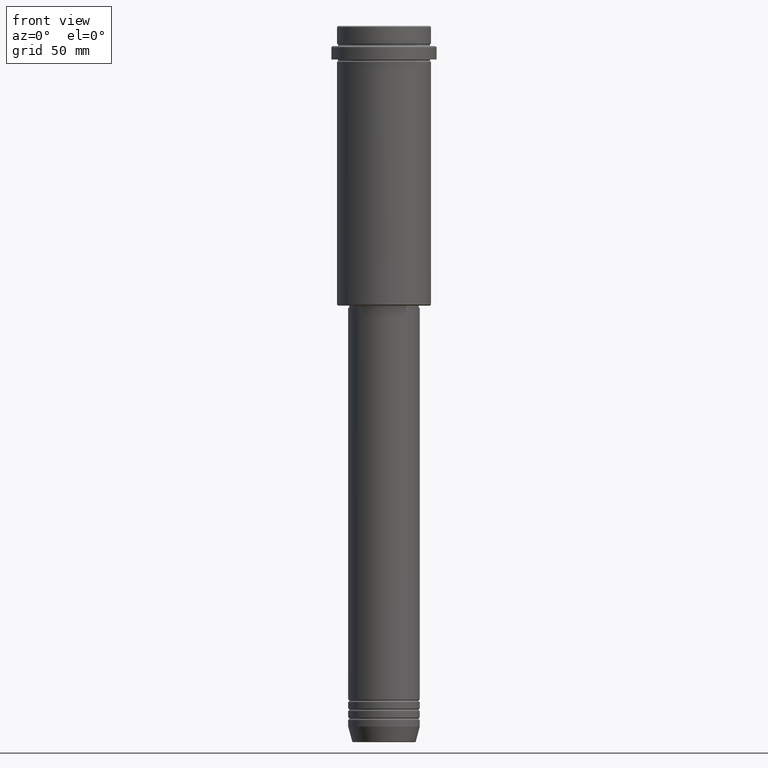
[diagram: clean part render]
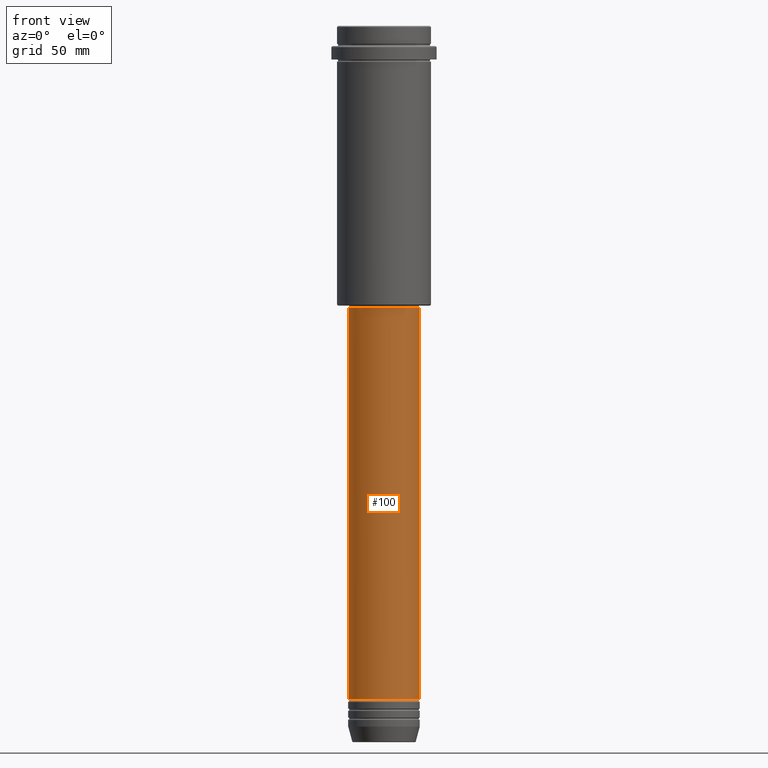
[diagram: same view with one face highlighted and labeled with its STEP entity id]
A machine part, front view. The second image highlights one B-rep face of the part: STEP entity #100.
In plain terms, the highlighted cylindrical surface (edge-blend (fillet) strip) has radius 16 mm, axis along (-0, -0, 1).
Its self-contained STEP definition (entity closure, byte-faithful):
#20 = EDGE_CURVE ( 'NONE', #558, #226, #1011, .T. ) ;
#21 = DIRECTION ( 'NONE',  ( -0.000000000000000000, -0.000000000000000000, 1.000000000000000000 ) ) ;
#68 = CARTESIAN_POINT ( 'NONE',  ( 16.00000000000000355, 0.000000000000000000, -125.9999999999999147 ) ) ;
#100 = ADVANCED_FACE ( 'NONE', ( #1083 ), #1275, .T. ) ;
#154 = AXIS2_PLACEMENT_3D ( 'NONE', #733, #518, #1068 ) ;
#191 = ORIENTED_EDGE ( 'NONE', *, *, #479, .T. ) ;
#226 = VERTEX_POINT ( 'NONE', #820 ) ;
#353 = CARTESIAN_POINT ( 'NONE',  ( -16.00000000000000000, 1.959434878635765131E-15, -300.9999999999998863 ) ) ;
#359 = EDGE_CURVE ( 'NONE', #226, #1260, #1058, .T. ) ;
#395 = EDGE_CURVE ( 'NONE', #558, #844, #1339, .T. ) ;
#476 = DIRECTION ( 'NONE',  ( -0.000000000000000000, -0.000000000000000000, 1.000000000000000000 ) ) ;
#478 = CARTESIAN_POINT ( 'NONE',  ( 16.00000000000000000, 0.000000000000000000, 0.000000000000000000 ) ) ;
#479 = EDGE_CURVE ( 'NONE', #844, #1260, #630, .T. ) ;
#487 = CARTESIAN_POINT ( 'NONE',  ( 0.000000000000000000, 0.000000000000000000, -300.9999999999998863 ) ) ;
#518 = DIRECTION ( 'NONE',  ( -0.000000000000000000, -0.000000000000000000, 1.000000000000000000 ) ) ;
#558 = VERTEX_POINT ( 'NONE', #353 ) ;
#560 = CARTESIAN_POINT ( 'NONE',  ( 0.000000000000000000, 0.000000000000000000, -125.9999999999999147 ) ) ;
#630 = LINE ( 'NONE', #478, #1139 ) ;
#691 = CARTESIAN_POINT ( 'NONE',  ( 16.00000000000000000, 0.000000000000000000, -300.9999999999998863 ) ) ;
#692 = VECTOR ( 'NONE', #476, 1000.000000000000000 ) ;
#733 = CARTESIAN_POINT ( 'NONE',  ( 0.000000000000000000, 0.000000000000000000, 0.000000000000000000 ) ) ;
#787 = AXIS2_PLACEMENT_3D ( 'NONE', #487, #1282, #1059 ) ;
#820 = CARTESIAN_POINT ( 'NONE',  ( -16.00000000000000355, 1.959434878635765526E-15, -125.9999999999999147 ) ) ;
#844 = VERTEX_POINT ( 'NONE', #691 ) ;
#859 = ORIENTED_EDGE ( 'NONE', *, *, #359, .F. ) ;
#878 = DIRECTION ( 'NONE',  ( -0.000000000000000000, -0.000000000000000000, 1.000000000000000000 ) ) ;
#886 = ORIENTED_EDGE ( 'NONE', *, *, #20, .F. ) ;
#911 = DIRECTION ( 'NONE',  ( 1.000000000000000000, 0.000000000000000000, 0.000000000000000000 ) ) ;
#992 = AXIS2_PLACEMENT_3D ( 'NONE', #560, #21, #911 ) ;
#1011 = LINE ( 'NONE', #1112, #692 ) ;
#1058 = CIRCLE ( 'NONE', #992, 16.00000000000000355 ) ;
#1059 = DIRECTION ( 'NONE',  ( 1.000000000000000000, 0.000000000000000000, 0.000000000000000000 ) ) ;
#1066 = ORIENTED_EDGE ( 'NONE', *, *, #395, .T. ) ;
#1068 = DIRECTION ( 'NONE',  ( 1.000000000000000000, 0.000000000000000000, 0.000000000000000000 ) ) ;
#1083 = FACE_OUTER_BOUND ( 'NONE', #1323, .T. ) ;
#1112 = CARTESIAN_POINT ( 'NONE',  ( -16.00000000000000000, 1.959434878635765131E-15, 0.000000000000000000 ) ) ;
#1139 = VECTOR ( 'NONE', #878, 1000.000000000000000 ) ;
#1260 = VERTEX_POINT ( 'NONE', #68 ) ;
#1275 = CYLINDRICAL_SURFACE ( 'NONE', #154, 16.00000000000000000 ) ;
#1282 = DIRECTION ( 'NONE',  ( -0.000000000000000000, -0.000000000000000000, 1.000000000000000000 ) ) ;
#1323 = EDGE_LOOP ( 'NONE', ( #886, #1066, #191, #859 ) ) ;
#1339 = CIRCLE ( 'NONE', #787, 16.00000000000000000 ) ;